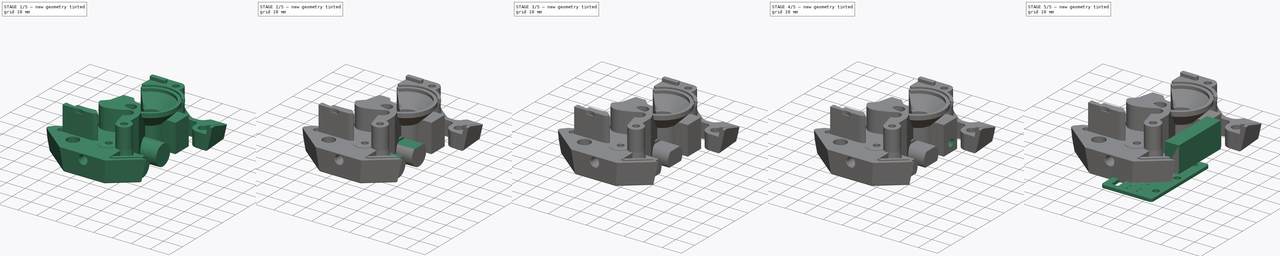
[diagram: build sequence overview — one tinted view per stage of 5, left to right]
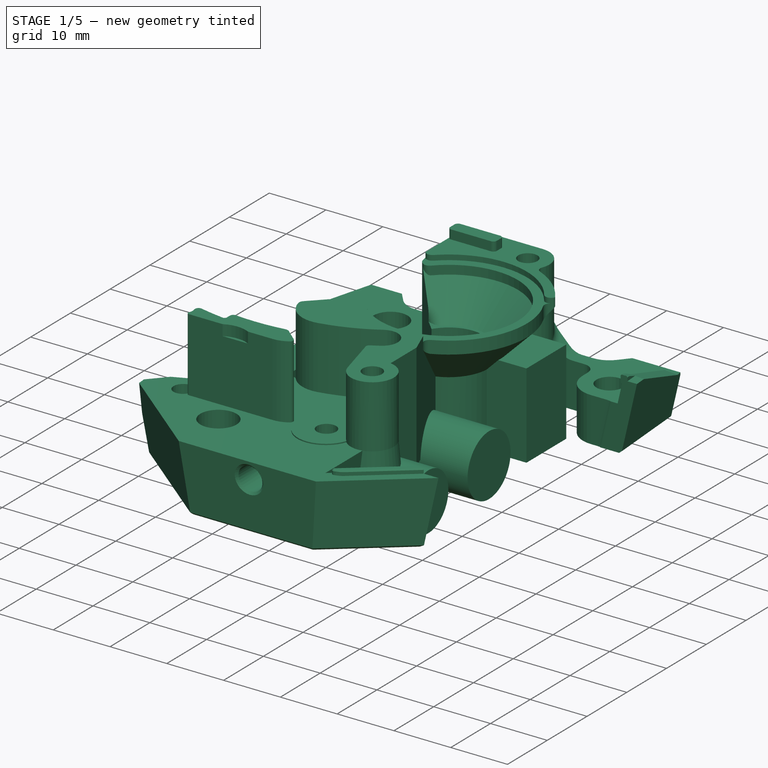
[diagram: stage 1 of 5 — iso view after this stage's code; geometry added in this stage tinted green]
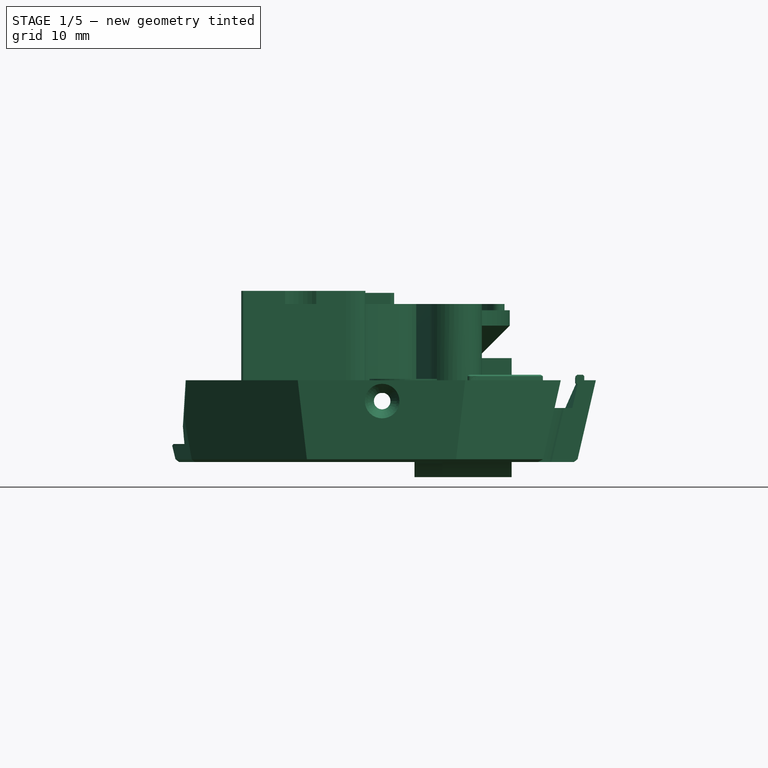
[diagram: stage 1 of 5 — front view after this stage's code; geometry added in this stage tinted green]
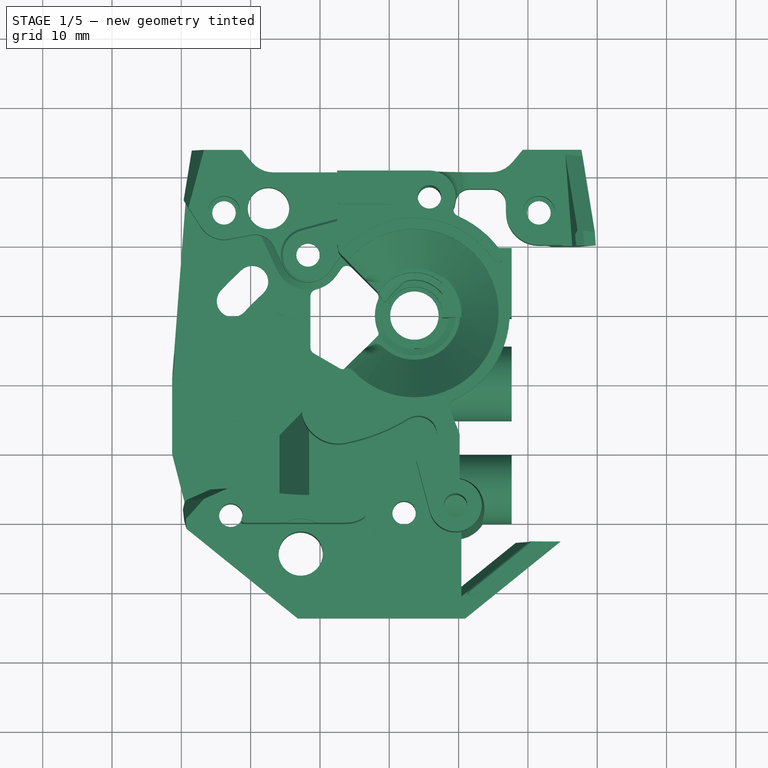
[diagram: stage 1 of 5 — top view after this stage's code; geometry added in this stage tinted green]
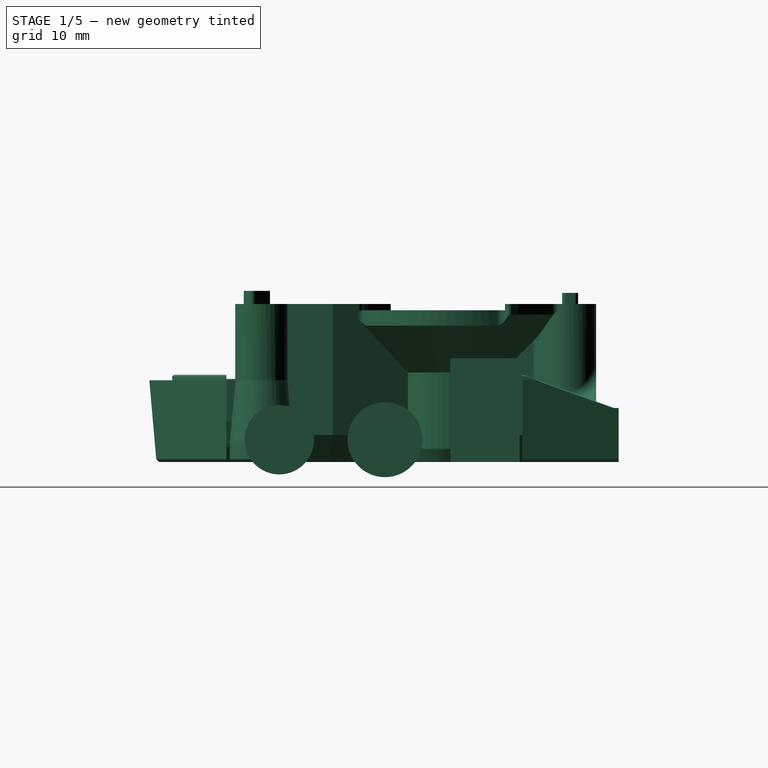
[diagram: stage 1 of 5 — right view after this stage's code; geometry added in this stage tinted green]
FCSTD DOCUMENT  (FreeCAD 0.19R24366 (Git))
Label: sb-mod
License: All rights reserved
LicenseURL: http://en.wikipedia.org/wiki/All_rights_reserved
objects: Part::Cut×10, Part::Cylinder×9, Part::Box×5, Part::Feature×3, Part::Fuse×2, Sketcher::SketchObject×1, PartDesign::Pad×1, PartDesign::Fillet×1, PartDesign::Body×1
note: 35 computed .brp shape members not serialized (recipe doc carries the construction recipe); baked Part::Feature solids carry a one-line shape summary decoded from their .brp

FEATURE [Part::Cylinder] Cylinder001
  Angle = 360
  AttacherType = Attacher::AttachEngine3D
  Height = 10
  Placement = pos=(17.64,-15.1,3.22) rot=(0,-1,0;1.5708rad)
  Radius = 5
FEATURE [Part::Cylinder] Cylinder003
  Angle = 360
  AttacherType = Attacher::AttachEngine3D
  Height = 14
  Placement = pos=(17.64,0.14,3.22) rot=(0,-1,0;1.5708rad)
  Radius = 5.4
FEATURE [Part::Box] Box001  label="Cube001"
  AttacherType = Attacher::AttachEngine3D
  Height = 15
  Length = 10
  Placement = pos=(7.64,9.56,0) rot=(0,0,1;0rad)
  Width = 10
FEATURE [Part::Fuse] Fusion
  Base = -> Cylinder001
  Tool = -> Cylinder003
FEATURE [Part::Box] Box004  label="Cube004"
  AttacherType = Attacher::AttachEngine3D
  Height = 12.6
  Length = 14
  Placement = pos=(17.64,-22.73,0) rot=(0,0,1;0rad)
  Width = 42.7
FEATURE [Part::Feature] main_body_beta0001_solid  label="main_body_beta0001 (Solid)"
  shape: bbox 62.65 x 67.71 x 24.7 mm, 10100 faces (baked)
FEATURE [Part::Cut] Cut009
  Base = -> main_body_beta0001_solid
  Tool = -> Box004
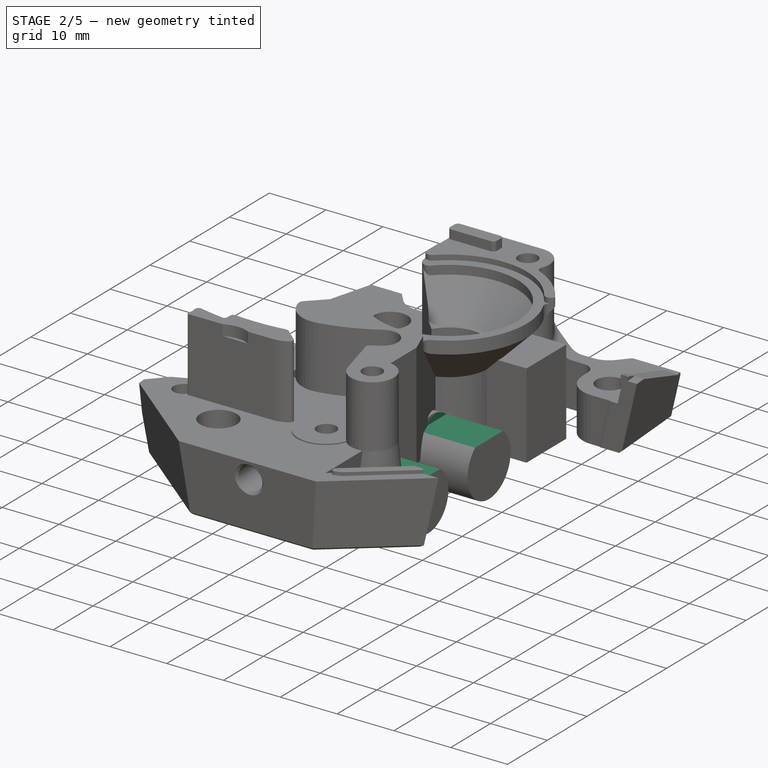
[diagram: stage 2 of 5 — iso view after this stage's code; geometry added in this stage tinted green]
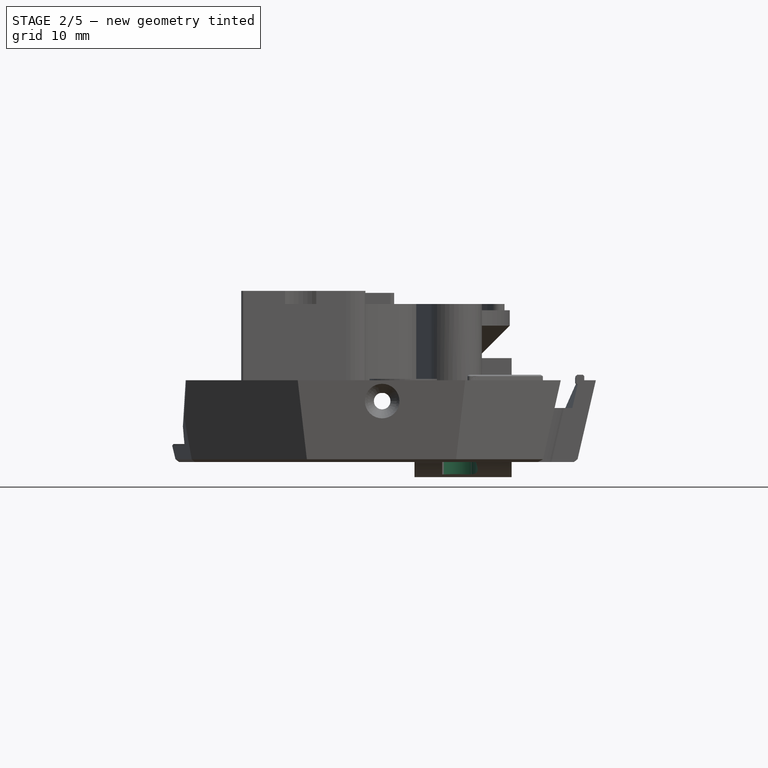
[diagram: stage 2 of 5 — front view after this stage's code; geometry added in this stage tinted green]
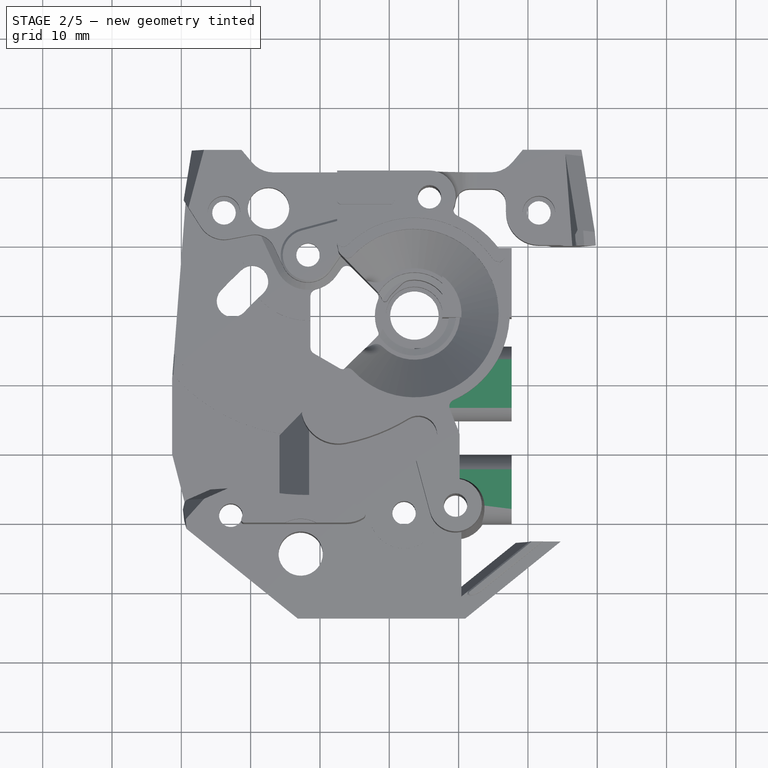
[diagram: stage 2 of 5 — top view after this stage's code; geometry added in this stage tinted green]
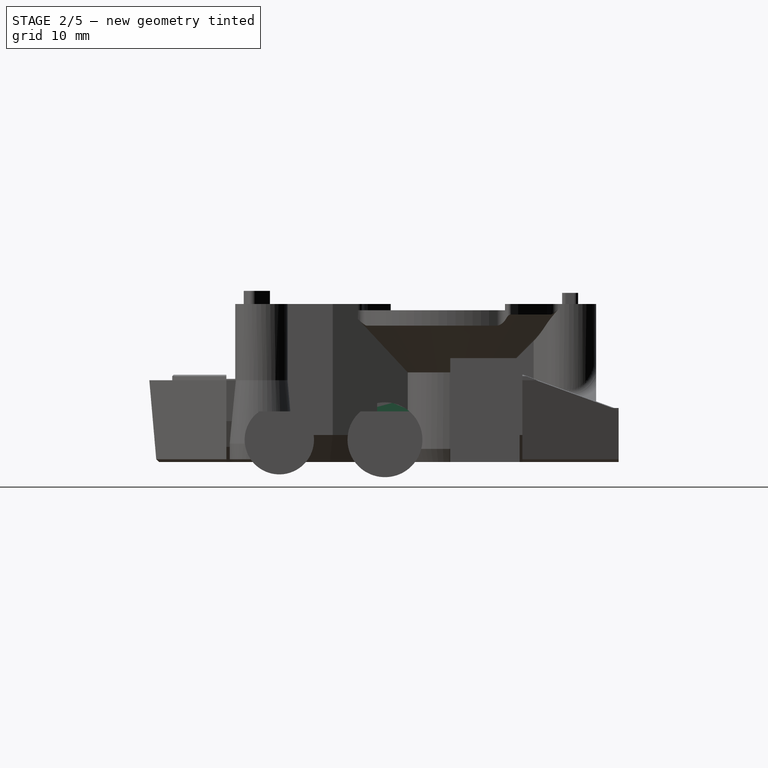
[diagram: stage 2 of 5 — right view after this stage's code; geometry added in this stage tinted green]
FEATURE [Part::Cylinder] Cylinder002
  Angle = 360
  AttacherType = Attacher::AttachEngine3D
  Height = 12
  Placement = pos=(9.55,-17.66,-3) rot=(0,0,1;0rad)
  Radius = 3.2
FEATURE [Part::Box] Box002  label="Cube002"
  AttacherType = Attacher::AttachEngine3D
  Height = 10
  Length = 10
  Placement = pos=(7.64,-21.3,7.32) rot=(0,0,1;0rad)
  Width = 30
FEATURE [Part::Fuse] Fusion001
  Base = -> Box001
  Tool = -> Fusion
FEATURE [Part::Cut] Cut
  Base = -> Fusion001
  Tool = -> Cylinder002
FEATURE [Part::Cut] Cut001
  Base = -> Cut
  Tool = -> Box002
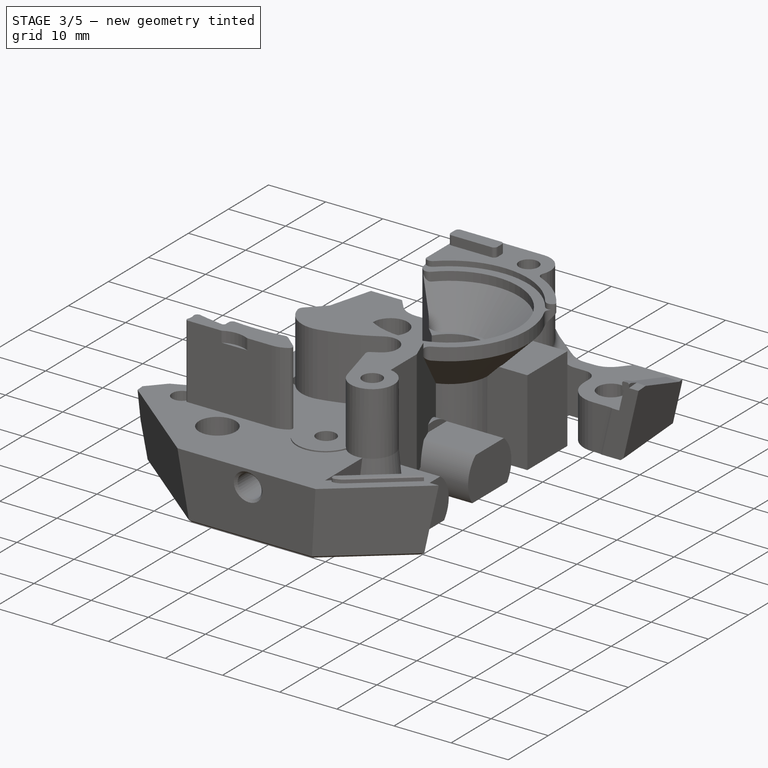
[diagram: stage 3 of 5 — iso view after this stage's code; geometry added in this stage tinted green]
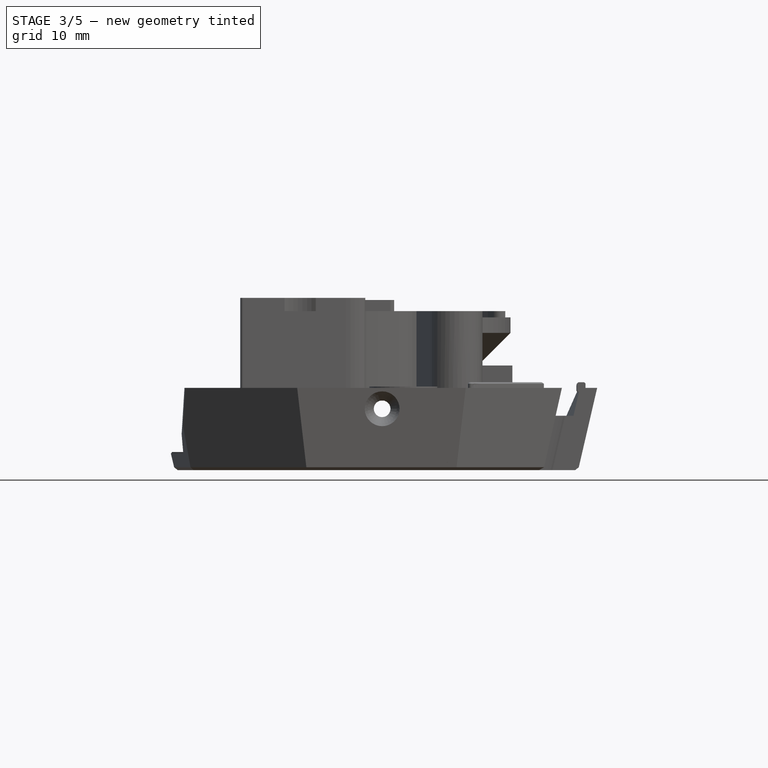
[diagram: stage 3 of 5 — front view after this stage's code; geometry added in this stage tinted green]
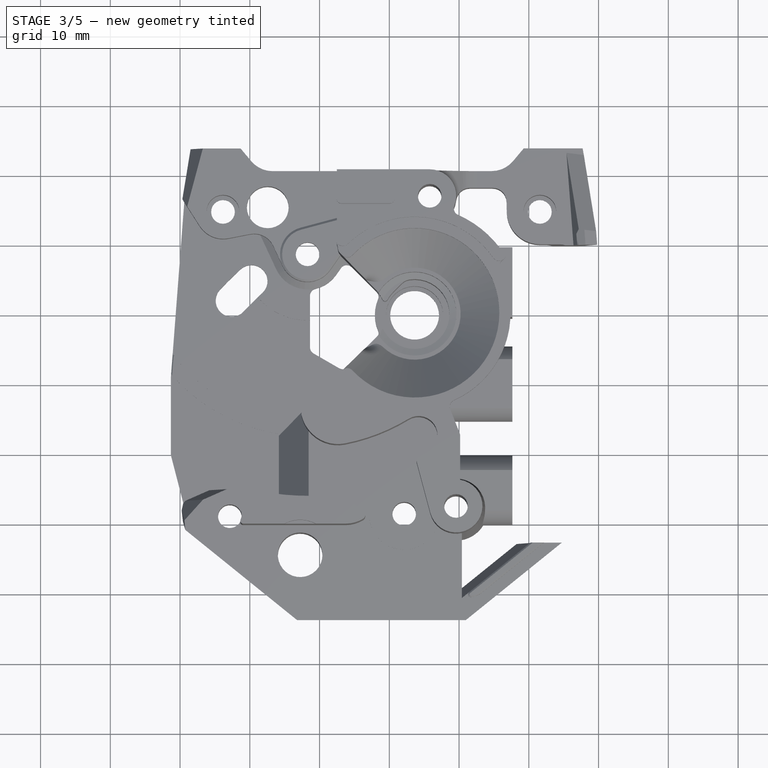
[diagram: stage 3 of 5 — top view after this stage's code; geometry added in this stage tinted green]
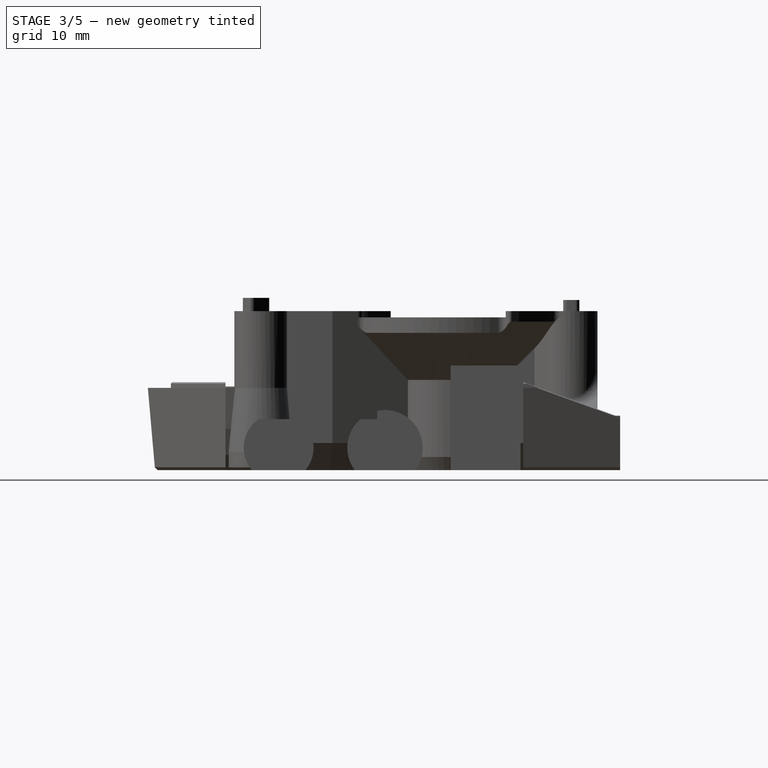
[diagram: stage 3 of 5 — right view after this stage's code; geometry added in this stage tinted green]
FEATURE [Part::Cylinder] Cylinder004
  Angle = 360
  AttacherType = Attacher::AttachEngine3D
  Height = 11.5
  Placement = pos=(3.62,10.05,0) rot=(0,0,1;0rad)
  Radius = 5.8
FEATURE [Part::Cylinder] Cylinder005
  Angle = 360
  AttacherType = Attacher::AttachEngine3D
  Height = 5
  Placement = pos=(3.62,10.05,11) rot=(0,0,1;0rad)
  Radius = 7
FEATURE [Part::Box] Box003  label="Cube003"
  AttacherType = Attacher::AttachEngine3D
  Height = 10
  Length = 15
  Placement = pos=(2.64,-21.3,-9.985) rot=(0,0,1;0rad)
  Width = 30
FEATURE [Part::Cut] Cut002
  Base = -> Cut001
  Tool = -> Box003
FEATURE [Part::Cut] Cut003
  Base = -> Cut002
  Tool = -> Cylinder004
FEATURE [Part::Cut] Cut004
  Base = -> Cut003
  Tool = -> Cylinder005
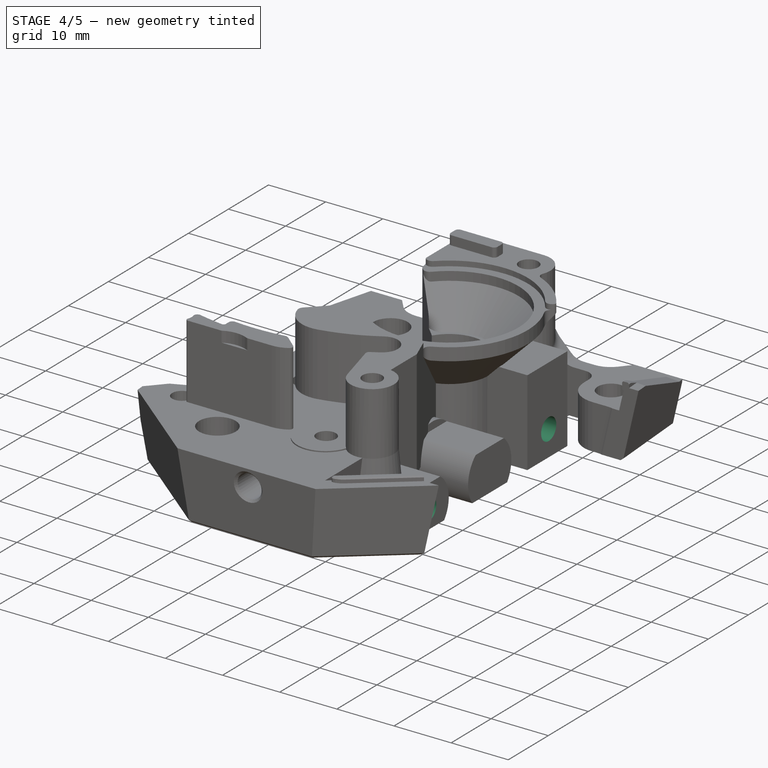
[diagram: stage 4 of 5 — iso view after this stage's code; geometry added in this stage tinted green]
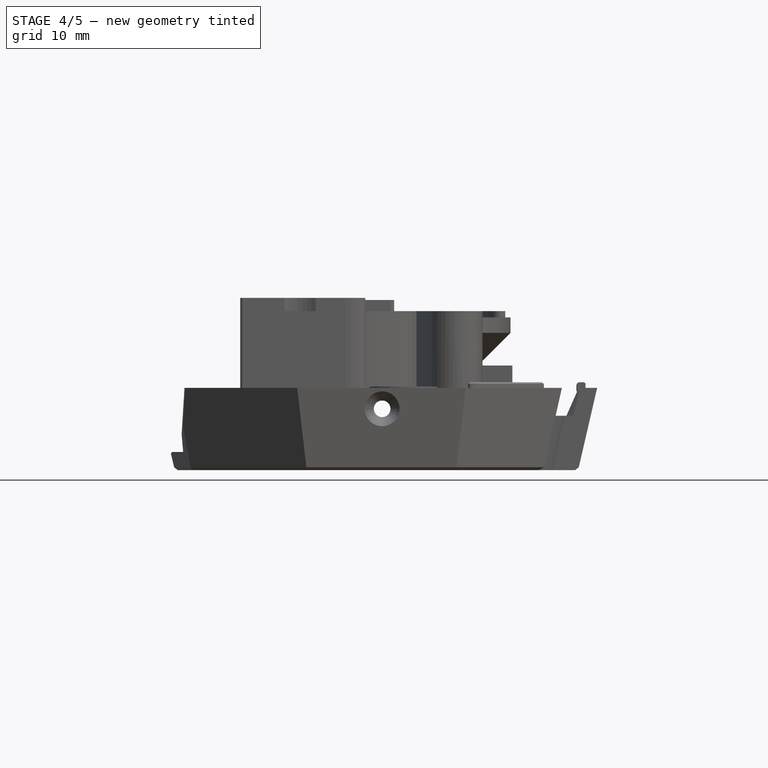
[diagram: stage 4 of 5 — front view after this stage's code; geometry added in this stage tinted green]
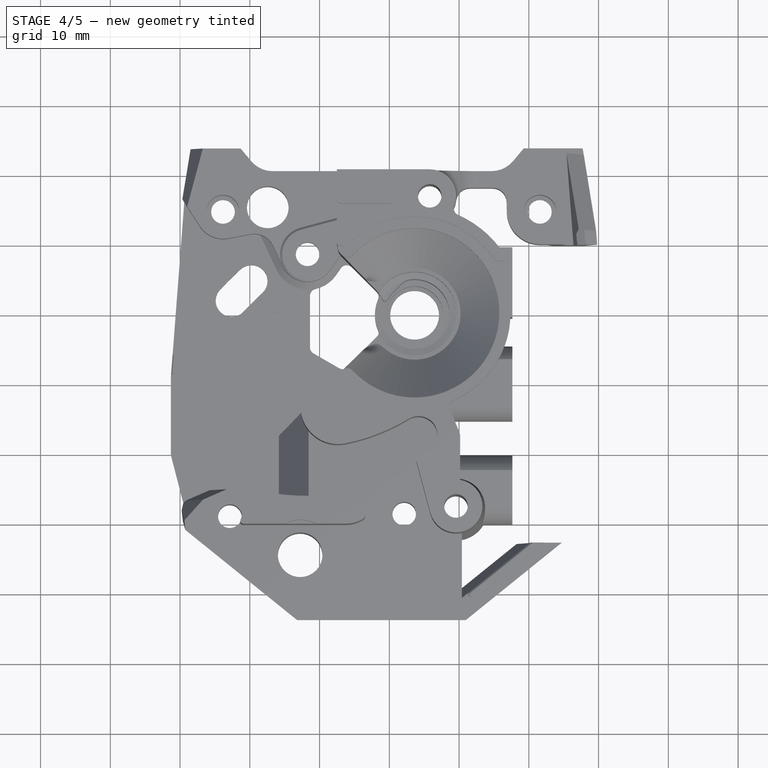
[diagram: stage 4 of 5 — top view after this stage's code; geometry added in this stage tinted green]
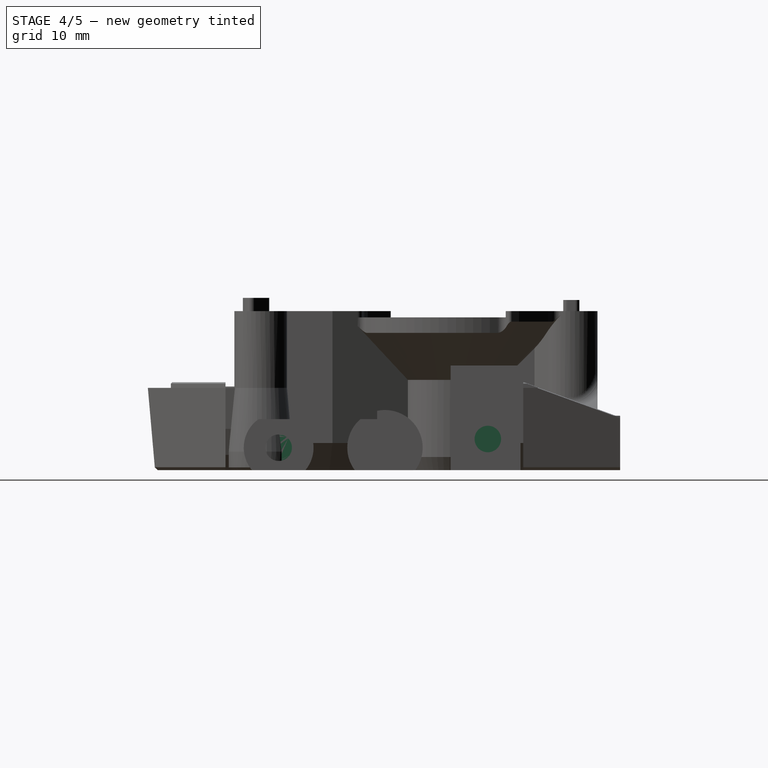
[diagram: stage 4 of 5 — right view after this stage's code; geometry added in this stage tinted green]
FEATURE [Part::Cylinder] Cylinder
  Angle = 360
  AttacherType = Attacher::AttachEngine3D
  Height = 4.6
  Placement = pos=(17.64,-15.1,3.22) rot=(0,1,0;4.71239rad)
  Radius = 1.9
FEATURE [Part::Cylinder] Cylinder006
  Angle = 360
  AttacherType = Attacher::AttachEngine3D
  Height = 4.6
  Placement = pos=(17.64,14.885,4.465) rot=(0,-1,0;1.5708rad)
  Radius = 1.9
FEATURE [Part::Cylinder] Cylinder008
  Angle = 360
  AttacherType = Attacher::AttachEngine3D
  Height = 4.6
  Placement = pos=(17.64,0.14,3.22) rot=(0,-1,0;1.5708rad)
  Radius = 1.9
FEATURE [Part::Cut] Cut005
  Base = -> Cut004
  Tool = -> Cylinder
FEATURE [Part::Cut] Cut006
  Base = -> Cut005
  Tool = -> Cylinder006
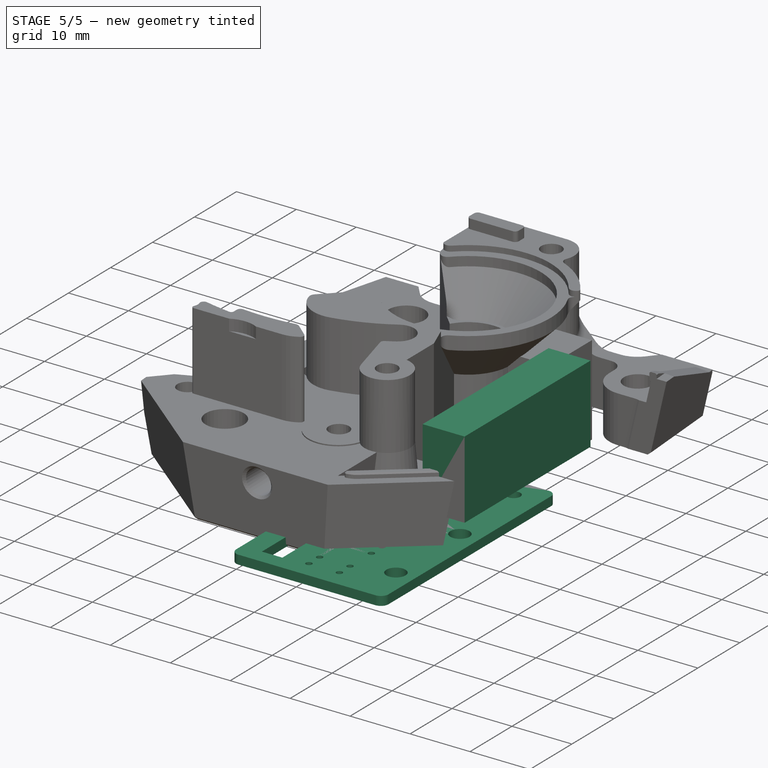
[diagram: stage 5 of 5 — iso view after this stage's code; geometry added in this stage tinted green]
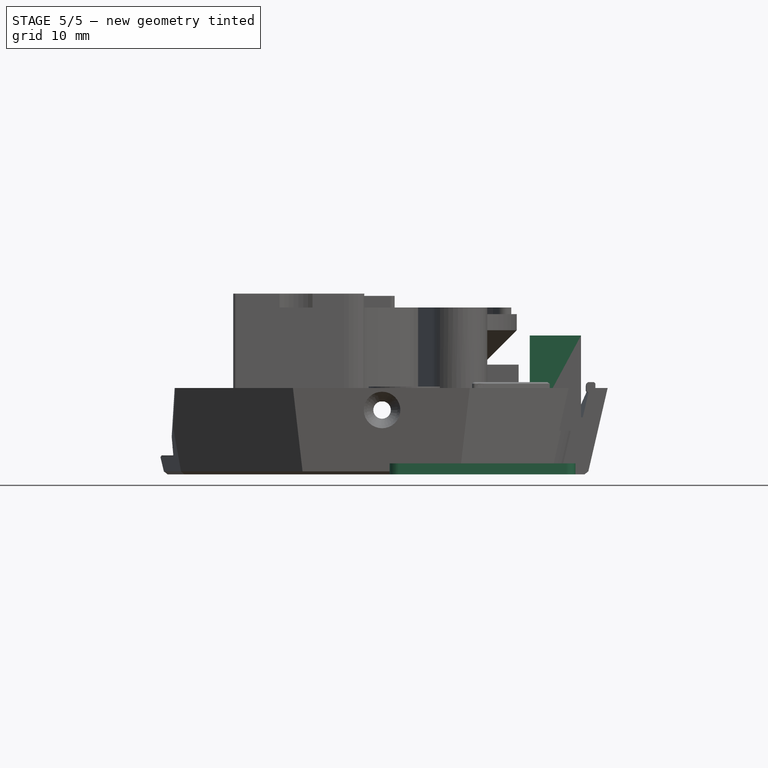
[diagram: stage 5 of 5 — front view after this stage's code; geometry added in this stage tinted green]
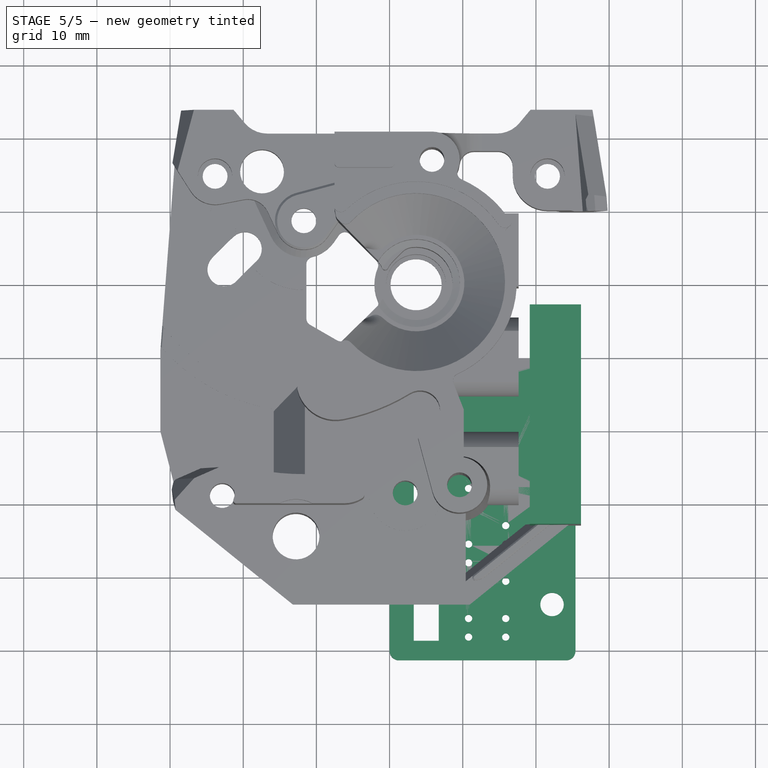
[diagram: stage 5 of 5 — top view after this stage's code; geometry added in this stage tinted green]
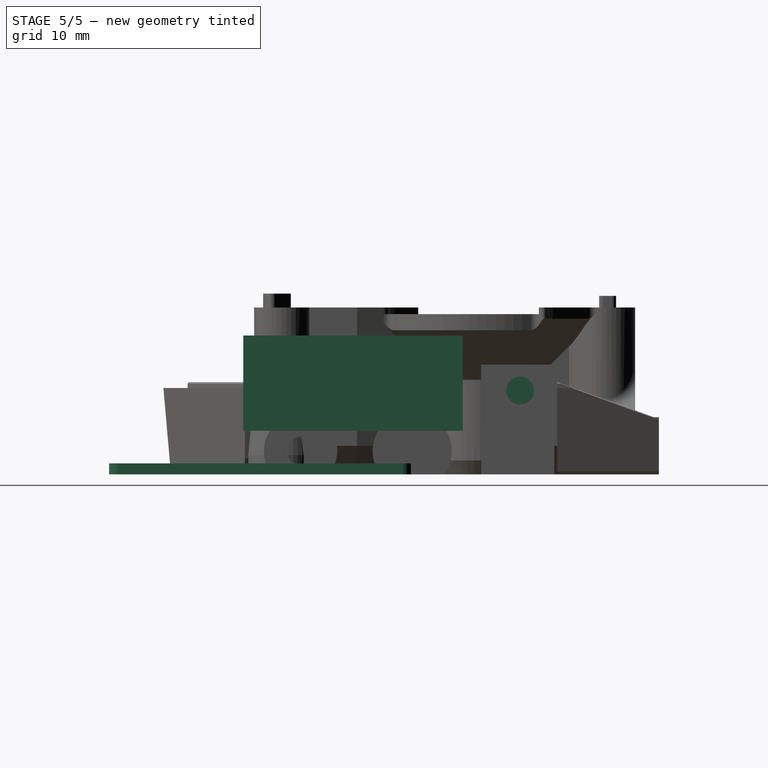
[diagram: stage 5 of 5 — right view after this stage's code; geometry added in this stage tinted green]
FEATURE [Part::Feature] main_body_beta0001
  shape: bbox 62.65 x 67.71 x 24.7 mm, 10100 faces, 0 solids (baked)
FEATURE [Part::Feature] motor_plate_beta0001
  Placement = pos=(12.645,-55.38,30.605) rot=(0,1,0;3.14159rad)
  shape: bbox 59.89 x 70.8 x 8.2 mm, 5878 faces, 0 solids (baked)
FEATURE [Sketcher::SketchObject] Sketch
  FullyConstrained = true
  MapMode = 5
  Support = -> [XY_Plane]
  sketch-geometry (29):
    g0: LineSegment StartX=0 StartY=0 StartZ=0 EndX=25.4 EndY=0 EndZ=0
    g1: LineSegment StartX=25.4 StartY=0 StartZ=0 EndX=25.4 EndY=-41.275 EndZ=0
    g2: LineSegment StartX=25.4 StartY=-41.275 StartZ=0 EndX=0 EndY=-41.275 EndZ=0
    g3: LineSegment StartX=0 StartY=-41.275 StartZ=0 EndX=0 EndY=0 EndZ=0
    g4: Circle CenterX=13.97 CenterY=-3.81 CenterZ=0 NormalX=0 NormalY=0 NormalZ=1 AngleXU=0 Radius=1.1
    g5: Circle CenterX=20.955 CenterY=-3.81 CenterZ=0 NormalX=0 NormalY=0 NormalZ=1 AngleXU=0 Radius=1.1
    g6: Circle CenterX=22.2 CenterY=-18.415 CenterZ=0 NormalX=0 NormalY=0 NormalZ=1 AngleXU=0 Radius=1.6
    g7: Circle CenterX=22.2 CenterY=-33.655 CenterZ=0 NormalX=0 NormalY=0 NormalZ=1 AngleXU=0 Radius=1.6
    g8: Circle CenterX=15.875 CenterY=-15.24 CenterZ=0 NormalX=0 NormalY=0 NormalZ=1 AngleXU=0 Radius=0.5
    g9: Circle CenterX=15.875 CenterY=-17.78 CenterZ=0 NormalX=0 NormalY=0 NormalZ=1 AngleXU=0 Radius=0.5
    g10: Circle CenterX=15.875 CenterY=-22.86 CenterZ=0 NormalX=0 NormalY=0 NormalZ=1 AngleXU=0 Radius=0.5
    g11: Circle CenterX=15.875 CenterY=-25.4 CenterZ=0 NormalX=0 NormalY=0 NormalZ=1 AngleXU=0 Radius=0.5
    g12: Circle CenterX=15.875 CenterY=-27.94 CenterZ=0 NormalX=0 NormalY=0 NormalZ=1 AngleXU=0 Radius=0.5
    g13: Circle CenterX=15.875 CenterY=-30.48 CenterZ=0 NormalX=0 NormalY=0 NormalZ=1 AngleXU=0 Radius=0.5
    g14: Circle CenterX=15.875 CenterY=-35.56 CenterZ=0 NormalX=0 NormalY=0 NormalZ=1 AngleXU=0 Radius=0.5
    g15: Circle CenterX=15.875 CenterY=-38.1 CenterZ=0 NormalX=0 NormalY=0 NormalZ=1 AngleXU=0 Radius=0.5
    g16: Circle CenterX=10.795 CenterY=-17.78 CenterZ=0 NormalX=0 NormalY=0 NormalZ=1 AngleXU=0 Radius=0.5
    g17: Circle CenterX=10.795 CenterY=-20.32 CenterZ=0 NormalX=0 NormalY=0 NormalZ=1 AngleXU=0 Radius=0.5
    g18: Circle CenterX=10.795 CenterY=-25.4 CenterZ=0 NormalX=0 NormalY=0 NormalZ=1 AngleXU=0 Radius=0.5
    g19: Circle CenterX=10.795 CenterY=-27.94 CenterZ=0 NormalX=0 NormalY=0 NormalZ=1 AngleXU=0 Radius=0.5
    g20: Circle CenterX=10.795 CenterY=-30.48 CenterZ=0 NormalX=0 NormalY=0 NormalZ=1 AngleXU=0 Radius=0.5
    g21: Circle CenterX=10.795 CenterY=-35.56 CenterZ=0 NormalX=0 NormalY=0 NormalZ=1 AngleXU=0 Radius=0.5
    g22: Circle CenterX=10.795 CenterY=-38.1 CenterZ=0 NormalX=0 NormalY=0 NormalZ=1 AngleXU=0 Radius=0.5
    g23: Circle CenterX=6.35 CenterY=-3.81 CenterZ=0 NormalX=0 NormalY=0 NormalZ=1 AngleXU=0 Radius=1.55
    g24: Circle CenterX=6.35 CenterY=-9.525 CenterZ=0 NormalX=0 NormalY=0 NormalZ=1 AngleXU=0 Radius=1.55
    g25: LineSegment StartX=3.3 StartY=-12.19 StartZ=0 EndX=6.72 EndY=-12.19 EndZ=0
    g26: LineSegment StartX=6.72 StartY=-12.19 StartZ=0 EndX=6.72 EndY=-38.61 EndZ=0
    g27: LineSegment StartX=6.72 StartY=-38.61 StartZ=0 EndX=3.3 EndY=-38.61 EndZ=0
    g28: LineSegment StartX=3.3 StartY=-38.61 StartZ=0 EndX=3.3 EndY=-12.19 EndZ=0
  constraints (86):
    c: Coincident(g0,g1)
    c: Coincident(g1,g2)
    c: Coincident(g2,g3)
    c: Coincident(g3,g0)
    c: Horizontal(g0)
    c: Horizontal(g2)
    c: Vertical(g1)
    c: Vertical(g3)
    c: DistanceY(g1,g0) = 41.275
    c: DistanceX(g0,g0) = 25.4
    c: Coincident(g-1,g0)
    c: Diameter(g6) = 3.2
    c: Diameter(g7) = 3.2
    c: Diameter(g5) = 2.2
    c: Diameter(g4) = 2.2
    c: DistanceX(g5,g0) = 4.445
    c: DistanceX(g4,g5) = 6.985
    c: DistanceY(g5,g0) = 3.81
    c: DistanceY(g4,g5) = 0
    c: DistanceY(g7,g6) = 15.24
    c: DistanceY(g1,g7) = 7.62
    c: DistanceX(g7,g1) = 3.2
    c: DistanceX(g6,g7) = 0
    c: Diameter(g8) = 1
    c: DistanceX(g8,g0) = 9.525
    c: DistanceY(g8,g0) = 15.24
    c: Diameter(g9) = 1
    c: Diameter(g10) = 1
    c: Diameter(g11) = 1
    c: Diameter(g12) = 1
    c: Diameter(g13) = 1
    c: Diameter(g14) = 1
    c: Diameter(g15) = 1
    c: DistanceY(g9,g8) = 2.54
    c: DistanceY(g10,g9) = 5.08
    c: DistanceY(g11,g10) = 2.54
    c: DistanceY(g12,g11) = 2.54
    c: DistanceY(g13,g12) = 2.54
    c: DistanceY(g14,g13) = 5.08
    c: DistanceY(g15,g14) = 2.54
    c: DistanceX(g9,g8) = 0
    c: DistanceX(g10,g9) = 0
    c: DistanceX(g11,g10) = 0
    c: DistanceX(g12,g11) = 0
    c: DistanceX(g13,g12) = 0
    c: DistanceX(g14,g13) = 0
    c: DistanceX(g15,g14) = 0
    c: Diameter(g16) = 1
    c: Diameter(g17) = 1
    c: Diameter(g18) = 1
    c: Diameter(g19) = 1
    c: Diameter(g20) = 1
    c: Diameter(g21) = 1
    c: Diameter(g22) = 1
    c: DistanceX(g16,g8) = 5.08
    c: DistanceX(g17,g16) = 0
    c: DistanceX(g18,g17) = 0
    c: DistanceX(g19,g18) = 0
    c: DistanceX(g20,g19) = 0
    c: DistanceX(g21,g20) = 0
    c: DistanceX(g22,g21) = 0
    c: DistanceY(g22,g15) = 0
    c: DistanceY(g21,g14) = 0
    c: DistanceY(g13,g20) = 0
    c: DistanceY(g12,g19) = 0
    c: DistanceY(g11,g18) = 0
    c: DistanceY(g9,g16) = 0
    c: DistanceY(g17,g16) = 2.54
    c: Diameter(g23) = 3.1
    c: Diameter(g24) = 3.1
    c: DistanceX(g23,g0) = 19.05
    c: DistanceX(g24,g23) = 0
    c: DistanceY(g24,g23) = 5.715
    c: DistanceY(g24,g0) = 9.525
    c: Coincident(g25,g26)
    c: Coincident(g26,g27)
    c: Coincident(g27,g28)
    c: Coincident(g28,g25)
    c: Horizontal(g25)
    c: Horizontal(g27)
    c: Vertical(g26)
    c: Vertical(g28)
    c: DistanceY(g26,g25) = 26.42
    c: DistanceY(g25,g0) = 12.19
    c: DistanceX(g25,g25) = 3.42
    c: DistanceX(g0,g25) = 3.3
FEATURE [PartDesign::Pad] Pad
  Direction = (1,1,1)
  Length = 1.5
  Length2 = 100
  Profile = -> Sketch
  Type = 0
FEATURE [PartDesign::Fillet] Fillet
  Base = -> Pad [Edge2,Edge5,Edge8,Edge1]
  BaseFeature = -> Pad
  Radius = 1.27
  SupportTransform = false
FEATURE [PartDesign::Body] Body
  Group = -> [Sketch,Pad,Fillet]
  Origin = -> Origin
  Placement = pos=(17.64,18.55,25.415) rot=(0,1,0;1.5708rad)
  Tip = -> Fillet
FEATURE [Part::Box] Box  label="Cube"
  AttacherType = Attacher::AttachEngine3D
  Height = 13
  Length = 7
  Placement = pos=(19.155,-22.95,5.97) rot=(0,0,1;0rad)
  Width = 30
FEATURE [Part::Cylinder] Cylinder007
  Angle = 360
  AttacherType = Attacher::AttachEngine3D
  Height = 4.6
  Placement = pos=(17.64,14.885,11.45) rot=(0,-1,0;1.5708rad)
  Radius = 1.9
FEATURE [Part::Cut] Cut007
  Base = -> Cut006
  Tool = -> Cylinder008
FEATURE [Part::Cut] Cut008
  Base = -> Cut007
  Tool = -> Cylinder007
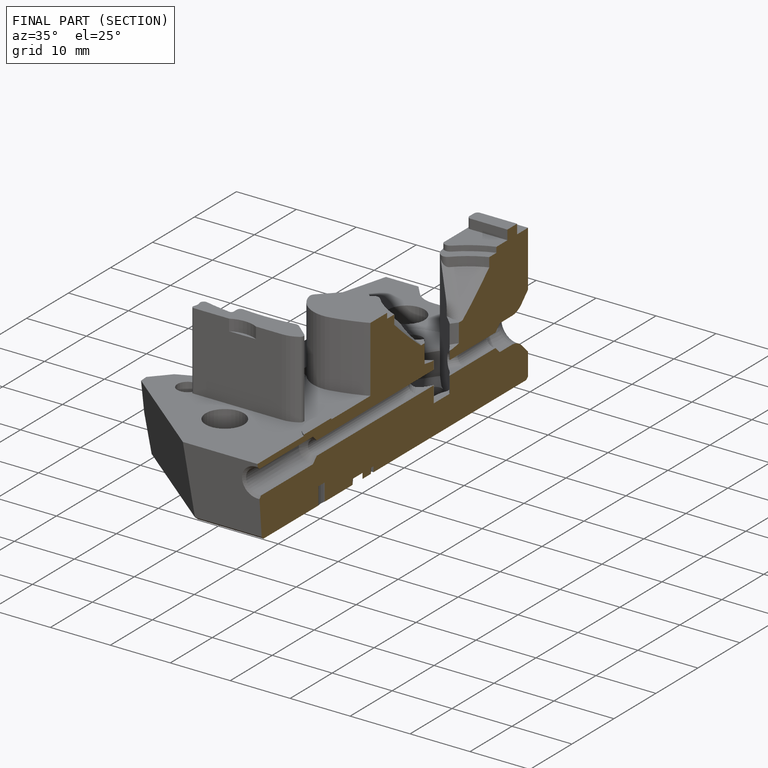
[diagram: finished part — half-section view (interior)]
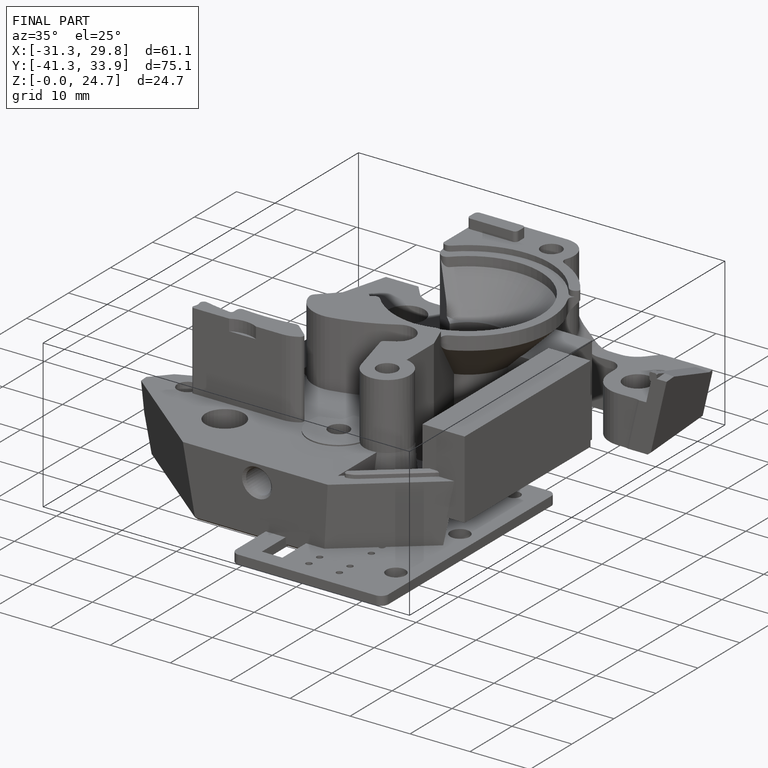
[diagram: finished part — iso view with bounding-box wireframe]
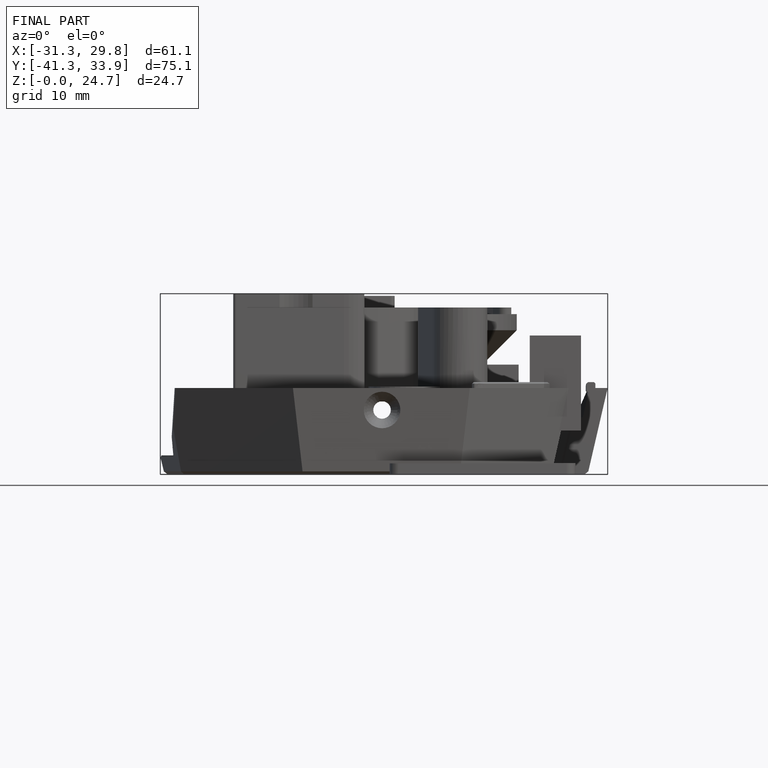
[diagram: finished part — front view with bounding-box wireframe]
